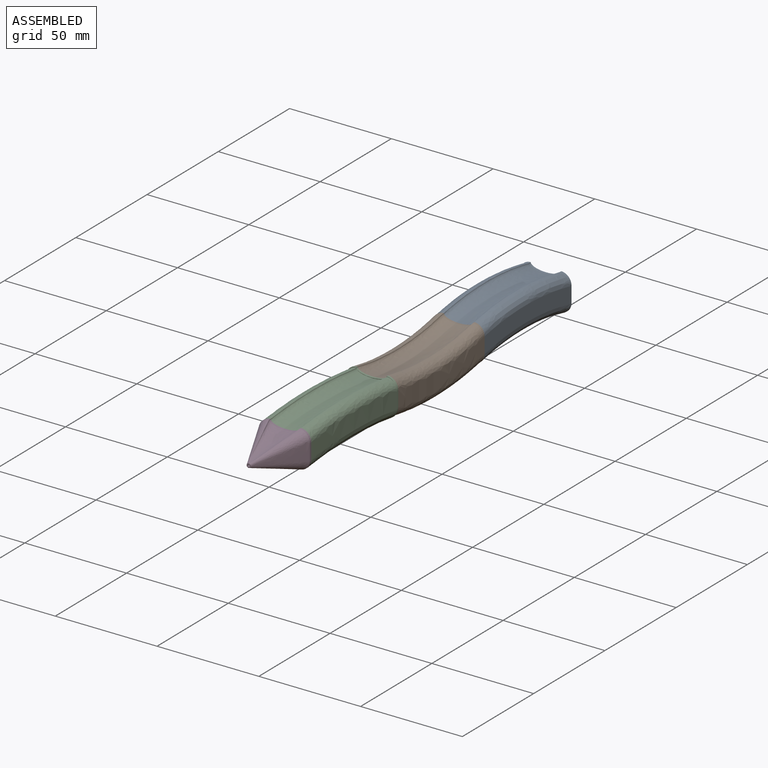
[diagram: assembled view]
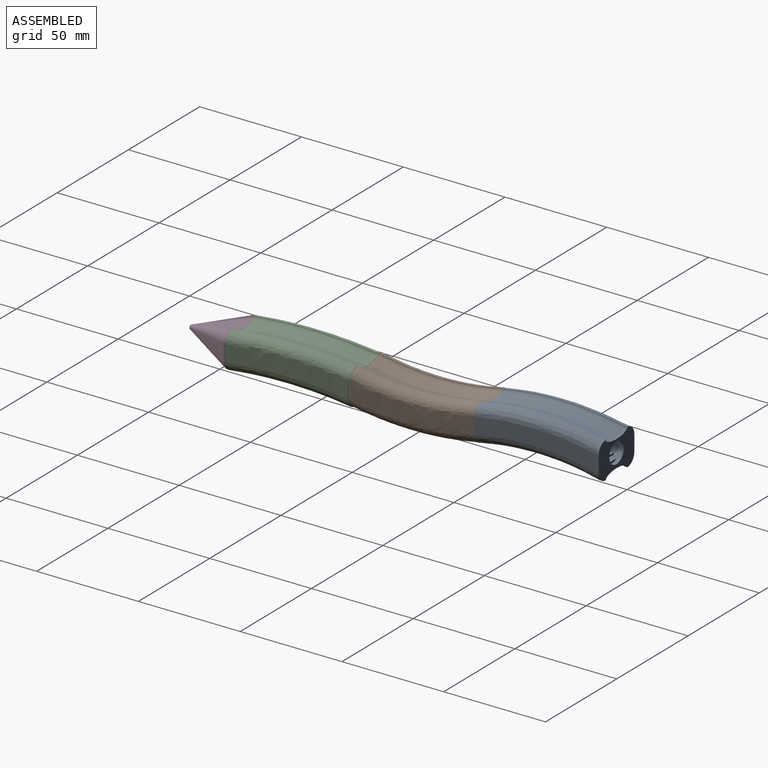
[diagram: assembled view, second angle]
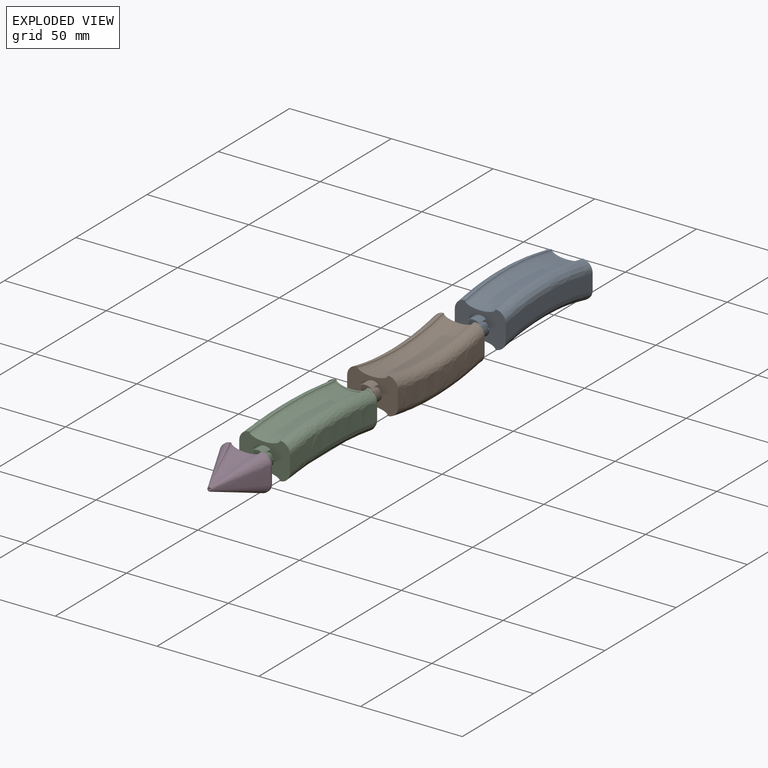
[diagram: exploded view]
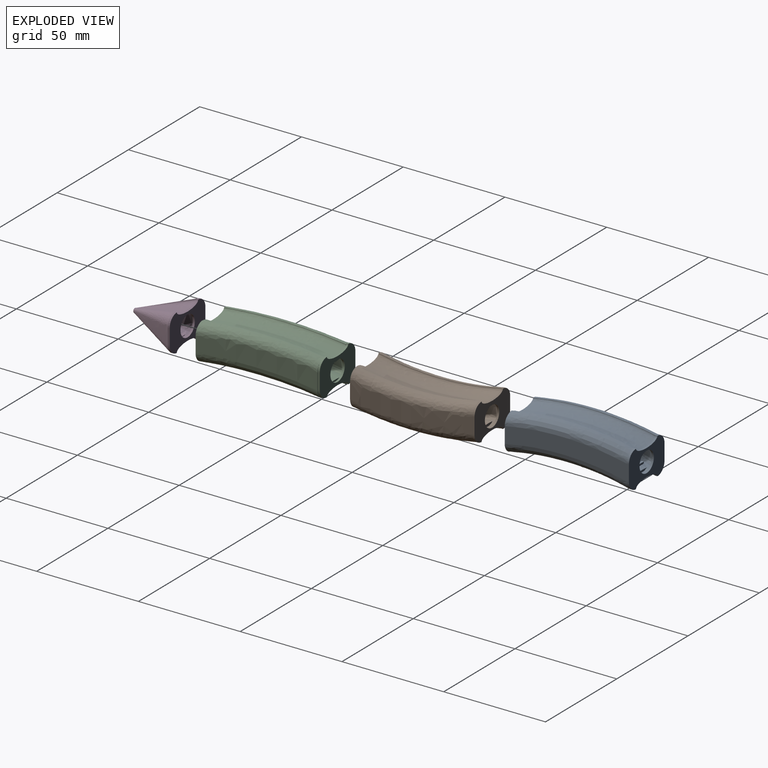
[diagram: exploded view, second angle]
ASSEMBLY  parts=4 mates=3
PART A: 48 faces, bbox 30x71x26.5 mm
  f0: cylinder r=5.05mm len=10.1mm, axis (0,1,0), area 43.5mm2, adj f1,f8,f12,f13,f14,f15,f37,f44
  f1: plane 12.64x7.82mm, normal (0,-1,0), area 57.9mm2, adj f0,f5,f6,f7,f8,f12
  f2: plane 7.03x5.88mm, normal (0,1,0), area 33.9mm2, adj f3,f12
  f3: cylinder r=3.5mm len=7mm, axis (0,-1,0), area 87.3mm2, adj f2,f4,f12
  f4: plane 20.69x12.95mm, normal (0,1,0), area 148.5mm2, adj f3,f5,f6,f7,f8,f9,f10,f11
  f5: offset ~65.59x22.14mm, area 153.6mm2, adj f1,f4,f6,f12
  f6: plane 57.77x11.63mm, normal (-1,0,0), area 449.3mm2, adj f1,f4,f5,f7
  f7: offset ~65.59x22.03mm, area 153.1mm2, adj f1,f4,f6,f8
  f8: offset ~65.83x20.01mm, area 1040.1mm2, adj f0,f1,f4,f7,f9,f13,f14
  f9: offset ~65.77x22.07mm, area 153.1mm2, adj f4,f8,f10,f13
  f10: plane 57.77x11.63mm, normal (1,0,0), area 449.3mm2, adj f4,f9,f11,f13
  f11: offset ~65.26x22.06mm, area 153.6mm2, adj f4,f10,f12,f13
  f12: offset ~65x20.01mm, area 1023.8mm2, adj f0,f1,f2,f3,f4,f5,f11,f13
  f13: plane 12.66x7.85mm, normal (0,-1,0), area 58mm2, adj f0,f8,f9,f10,f11,f12
  f14: plane 6.24x1.3mm, normal (0,1,0), area 5.3mm2, adj f0,f8
  f15: plane 5.68x1.07mm, normal (0,1,0), area 3.9mm2, adj f0,f12
  f16: plane 25.01x17.94mm, normal (0,-1,0), area 297.2mm2, adj f17,f18,f19,f20,f21,f22,f23,f24
  f17: bspline ~60x15.01mm, area 1006.6mm2, adj f16,f18,f24,f34
  f18: bspline ~60x17.14mm, area 469.5mm2, adj f16,f17,f19,f35
  f19: plane 60.21x11.63mm, normal (-1,0,0), area 469.2mm2, adj f16,f18,f20,f36
  f20: bspline ~60x11.08mm, area 469.1mm2, adj f16,f19,f21,f29
  f21: bspline ~60.83x15.01mm, area 1005.4mm2, adj f16,f20,f22,f30
  f22: bspline ~60.59x17.16mm, area 469.1mm2, adj f16,f21,f23,f31
  f23: plane 60.21x11.63mm, normal (1,0,0), area 469.2mm2, adj f16,f22,f24,f32
  f24: bspline ~60.59x17.27mm, area 469.5mm2, adj f16,f17,f23,f33
  f25: cylinder r=4.75mm len=9.5mm, axis (0,1,0), area 139.2mm2, adj f16,f26,f38,f39,f40,f41,f42
  f26: plane 9.5x9.5mm, normal (0,-1,0), area 64.3mm2, adj f25,f27,f38,f39,f43
  f27: cylinder r=1mm len=10mm, axis (0,-1,0), area 61.3mm2, adj f26,f28,f40,f41,f42,f43
  f28: plane 2x2mm, normal (0,-1,0), area 3.1mm2, adj f27
  f29: extruded ~5x5mm, area 7.9mm2, adj f20,f30,f36,f37
  f30: extruded ~15x2.5mm, area 16.7mm2, adj f21,f29,f31,f37
  f31: extruded ~5x5mm, area 7.9mm2, adj f22,f30,f32,f37
  f32: plane 7.94x1mm, normal (1,0,0), area 7.9mm2, adj f23,f31,f33,f37
  f33: extruded ~5x5mm, area 7.9mm2, adj f24,f32,f34,f37
  f34: extruded ~15x2.5mm, area 16.7mm2, adj f17,f33,f35,f37
  f35: extruded ~5x5mm, area 7.9mm2, adj f18,f34,f36,f37
  f36: plane 7.94x1mm, normal (-1,0,0), area 7.9mm2, adj f19,f29,f35,f37
  f37: plane 25x17.94mm, normal (0,1,0), area 290.6mm2, adj f0,f29,f30,f31,f32,f33,f34,f35
  f38: plane 3.98x3.84mm, normal (0,0,1), area 15.3mm2, adj f25,f26,f40,f43
  f39: plane 4.98x2.85mm, normal (0,0,-1), area 14.2mm2, adj f25,f26,f42,f43
  f40: plane 4.75x2.8mm, normal (0,1,0), area 11.7mm2, adj f25,f27,f38,f41,f43
  f41: plane 3.75x1mm, normal (0,0,1), area 3.8mm2, adj f25,f27,f40,f42
  f42: plane 4.75x3.8mm, normal (0,-1,0), area 15.1mm2, adj f25,f27,f39,f41,f43
  f43: plane 4.98x2.8mm, normal (1,0,0), area 6.8mm2, adj f26,f27,f38,f39,f40,f42
  f44: plane 3x0.9mm, normal (0,-1,0), area 2.7mm2, adj f0,f45,f46,f47
  f45: plane 2.92x0.9mm, normal (0,0,1), area 2.6mm2, adj f0,f37,f44,f47
  f46: plane 3x0.9mm, normal (0,0,-1), area 2.7mm2, adj f0,f37,f44,f47
  f47: plane 0.9x0.9mm, normal (-1,0,0), area 0.8mm2, adj f37,f44,f45,f46
PART B: 34 faces, bbox 30.2x71x26.2 mm
  f0: plane 9.5x9.5mm, normal (0,-1,0), area 64.3mm2, adj f18,f28,f31,f32,f33
  f1: plane 14.48x9.54mm, normal (0,-1,0), area 56.4mm2, adj f5,f6,f8,f12
  f2: plane 4.5x4.5mm, normal (0,1,0), area 12.8mm2, adj f3,f28
  f3: cylinder r=2.25mm len=5mm, axis (0,1,0), area 67.2mm2, adj f2,f4,f13,f29,f30,f33
  f4: plane 20.7x12.96mm, normal (0,1,0), area 170.4mm2, adj f3,f5,f6,f7,f8
  f5: offset ~65.75x25.98mm, area 798.7mm2, adj f1,f4,f6,f8
  f6: offset ~65x20.2mm, area 1045.6mm2, adj f1,f4,f5,f7,f9,f10,f12
  f7: offset ~65.74x25.98mm, area 797.7mm2, adj f4,f6,f8,f9
  f8: offset ~65.8x20.2mm, area 1039.7mm2, adj f1,f4,f5,f7,f9,f11,f12
  f9: plane 14.47x9.88mm, normal (0,-1,0), area 59.7mm2, adj f6,f7,f8,f12
  f10: plane 5.51x0.99mm, normal (0,1,0), area 3.6mm2, adj f6,f12
  f11: plane 6.34x1.35mm, normal (0,1,0), area 5.6mm2, adj f8,f12
  f12: cylinder r=5.05mm len=10.1mm, axis (0,1,0), area 44.2mm2, adj f1,f6,f8,f9,f10,f11,f27
  f13: plane 25.01x17.94mm, normal (0,-1,0), area 309.1mm2, adj f3,f14,f15,f16,f17,f18,f30,f32
  f14: bspline ~60x15.2mm, area 1005.1mm2, adj f13,f15,f17,f23
  f15: bspline ~60.74x21.25mm, area 1408.7mm2, adj f13,f14,f16,f24,f25,f26
  f16: bspline ~60x15.2mm, area 1006.1mm2, adj f13,f15,f17,f19
  f17: bspline ~60.75x21.25mm, area 1408.7mm2, adj f13,f14,f16,f20,f21,f22
  f18: cylinder r=4.75mm len=9.5mm, axis (0,1,0), area 139.2mm2, adj f0,f13,f29,f30,f31,f32
  f19: extruded ~15x2.5mm, area 16.7mm2, adj f16,f20,f26,f27
  f20: extruded ~5x5mm, area 7.9mm2, adj f17,f19,f21,f27
  f21: plane 7.94x1mm, normal (1,0,0), area 7.9mm2, adj f17,f20,f22,f27
  f22: extruded ~5x5mm, area 7.9mm2, adj f17,f21,f23,f27
  f23: extruded ~15x2.5mm, area 16.7mm2, adj f14,f22,f24,f27
  f24: extruded ~5x5mm, area 7.9mm2, adj f15,f23,f25,f27
  f25: plane 7.94x1mm, normal (-1,0,0), area 7.9mm2, adj f15,f24,f26,f27
  f26: extruded ~5x5mm, area 7.9mm2, adj f15,f19,f25,f27
  f27: plane 25x17.94mm, normal (0,1,0), area 287.9mm2, adj f12,f19,f20,f21,f22,f23,f24,f25
  f28: cylinder r=1mm len=2.5mm, axis (0,-1,0), area 15.7mm2, adj f0,f2
  f29: plane 4.75x2.8mm, normal (0,1,0), area 8.5mm2, adj f3,f18,f30,f31,f33
  f30: plane 2.5x1mm, normal (0,0,1), area 2.5mm2, adj f3,f13,f18,f29
  f31: plane 4x3.84mm, normal (0,0,1), area 15.4mm2, adj f0,f18,f29,f33
  f32: plane 5x2.85mm, normal (0,0,-1), area 14.3mm2, adj f0,f13,f18,f33
  f33: plane 5x1.55mm, normal (1,0,0), area 5.5mm2, adj f0,f3,f13,f29,f31,f32
PART C: 41 faces, bbox 30.2x71x25 mm
  f0: plane 14.52x9.73mm, normal (0,-1,0), area 60mm2, adj f5,f6,f8,f11
  f1: plane 14.51x9.37mm, normal (0,-1,0), area 56.6mm2, adj f6,f7,f8,f11
  f2: plane 4.5x4.5mm, normal (0,1,0), area 12.8mm2, adj f3,f34
  f3: cylinder r=2.25mm len=5mm, axis (0,1,0), area 67.2mm2, adj f2,f4,f35,f36,f37,f40
  f4: plane 20.67x13.01mm, normal (0,1,0), area 171.7mm2, adj f3,f5,f6,f7,f8
  f5: offset ~65.6x24.78mm, area 804.6mm2, adj f0,f4,f6,f8
  f6: offset ~65x20.21mm, area 1047.3mm2, adj f0,f1,f4,f5,f7,f10
  f7: offset ~65.61x24.78mm, area 803.8mm2, adj f1,f4,f6,f8
  f8: offset ~65.64x20.21mm, area 1044.7mm2, adj f0,f1,f4,f5,f7,f9
  f9: plane 6.39x1.38mm, normal (0,1,0), area 5.7mm2, adj f8,f11
  f10: plane 5.27x0.92mm, normal (0,1,0), area 3.1mm2, adj f6,f11
  f11: cylinder r=5.05mm len=10.1mm, axis (0,1,0), area 31.7mm2, adj f0,f1,f9,f10,f33
  f12: plane 0.61x0.4mm, normal (0,1,0), area 0.1mm2, adj f16,f17,f29
  f13: plane 18.38x2.74mm, normal (0,1,0), area 4.1mm2, adj f17,f18,f25,f26
  f14: plane 16.41x5.04mm, normal (0,1,0), area 4.3mm2, adj f18,f19,f30,f31,f32
  f15: plane 25.01x17.94mm, normal (0,-1,0), area 297.1mm2, adj f16,f17,f18,f19,f20,f37
  f16: bspline ~60.64x15.21mm, area 1003.3mm2, adj f12,f15,f17,f19,f24
  f17: bspline ~60.61x20.05mm, area 1414.4mm2, adj f12,f13,f15,f16,f18,f23,f26
  f18: bspline ~60x15.21mm, area 1003.6mm2, adj f13,f14,f15,f17,f19,f22
  f19: bspline ~60.6x20.05mm, area 1414.4mm2, adj f14,f15,f16,f18,f24
  f20: cylinder r=4.75mm len=9.5mm, axis (0,1,0), area 139.1mm2, adj f15,f21,f35,f36,f38,f39
  f21: plane 9.5x9.5mm, normal (0,-1,0), area 64.4mm2, adj f20,f34,f38,f39,f40
  f22: plane 0.61x0.4mm, normal (0,-1,0), area 0.1mm2, adj f18,f25,f32
  f23: plane 16.41x5.03mm, normal (0,-1,0), area 4.3mm2, adj f17,f26,f27,f28,f29
  f24: plane 18.39x2.75mm, normal (0,-1,0), area 4.1mm2, adj f16,f19,f29,f30
  f25: extruded ~15x2.5mm, area 16.7mm2, adj f13,f22,f26,f32,f33
  f26: cylinder r=5mm len=5mm, axis (0,-1,0), area 7.9mm2, adj f13,f17,f23,f25,f27,f33
  f27: plane 7.94x1mm, normal (-1,0,0), area 7.9mm2, adj f23,f26,f28,f33
  f28: cylinder r=5mm len=5mm, axis (0,-1,0), area 7.9mm2, adj f23,f27,f29,f33
  f29: extruded ~15x2.5mm, area 16.7mm2, adj f12,f23,f24,f28,f30,f33
  f30: cylinder r=5mm len=5mm, axis (0,-1,0), area 7.9mm2, adj f14,f24,f29,f31,f33
  f31: plane 7.94x1mm, normal (1,0,0), area 7.9mm2, adj f14,f30,f32,f33
  f32: cylinder r=5mm len=5mm, axis (0,-1,0), area 7.9mm2, adj f14,f22,f25,f31,f33
  f33: plane 25x17.94mm, normal (0,1,0), area 287.9mm2, adj f11,f25,f26,f27,f28,f29,f30,f31
  f34: cylinder r=1mm len=2.5mm, axis (0,-1,0), area 15.7mm2, adj f2,f21
  f35: plane 4.75x2.8mm, normal (0,1,0), area 8.5mm2, adj f3,f20,f36,f38,f40
  f36: plane 2.5x1mm, normal (0,0,1), area 2.5mm2, adj f3,f20,f35,f37
  f37: plane 4.76x3.87mm, normal (0,-1,0), area 11.9mm2, adj f3,f15,f36,f39,f40
  f38: plane 4x3.83mm, normal (0,0,1), area 15.3mm2, adj f20,f21,f35,f40
  f39: plane 5x2.84mm, normal (0,0,-1), area 14.2mm2, adj f20,f21,f37,f40
  f40: plane 5x1.56mm, normal (1,0,0), area 5.6mm2, adj f3,f21,f35,f37,f38,f39
PART D: 24 faces, bbox 28x29x21.1 mm
  f0: plane 15.37x11.11mm, normal (0,-1,0), area 85.1mm2, adj f2,f3,f5,f6
  f1: plane 15.35x11mm, normal (0,-1,0), area 84.1mm2, adj f3,f4,f5,f6
  f2: offset ~26.38x20.94mm, area 197.3mm2, adj f0,f3,f5,f23
  f3: offset ~26.94x18.14mm, area 221.8mm2, adj f0,f1,f2,f4,f6,f7,f23
  f4: offset ~26.38x20.94mm, area 197.3mm2, adj f1,f3,f5,f23
  f5: offset ~26.94x18.14mm, area 220.1mm2, adj f0,f1,f2,f4,f6,f8,f23
  f6: cylinder r=5.05mm len=10.1mm, axis (0,1,0), area 36.9mm2, adj f0,f1,f3,f5,f7,f8,f22
  f7: plane 2.97x0.28mm, normal (0,1,0), area 0.5mm2, adj f3,f6
  f8: plane 3.61x0.42mm, normal (0,1,0), area 1mm2, adj f5,f6
  f9: plane 2.02x2mm, normal (0,-1,0), area 2.4mm2, adj f10,f11,f12,f13,f23
  f10: bspline ~25x15mm, area 219.8mm2, adj f9,f11,f13,f21
  f11: bspline ~25x17.94mm, area 356.7mm2, adj f9,f10,f12,f18,f19,f20
  f12: bspline ~25x15mm, area 220mm2, adj f9,f11,f13,f17
  f13: bspline ~25x17.94mm, area 357.1mm2, adj f9,f10,f12,f14,f15,f16
  f14: extruded ~5x5mm, area 7.9mm2, adj f13,f15,f21,f22
  f15: plane 7.94x1mm, normal (1,0,0), area 7.9mm2, adj f13,f14,f16,f22
  f16: extruded ~5x5mm, area 7.9mm2, adj f13,f15,f17,f22
  f17: extruded ~15x2.5mm, area 16.7mm2, adj f12,f16,f18,f22
  f18: extruded ~5x5mm, area 7.9mm2, adj f11,f17,f19,f22
  f19: plane 7.94x1mm, normal (-1,0,0), area 7.9mm2, adj f11,f18,f20,f22
  f20: extruded ~5x5mm, area 7.9mm2, adj f11,f19,f21,f22
  f21: extruded ~15x2.5mm, area 16.7mm2, adj f10,f14,f20,f22
  f22: plane 25x17.94mm, normal (0,1,0), area 287.9mm2, adj f6,f14,f15,f16,f17,f18,f19,f20
  f23: cylinder r=0.5mm len=4.8mm, axis (0,-1,0), area 12.2mm2, adj f2,f3,f4,f5,f9
PLACE A t=(-0.23,-226.3,24.47)mm
PLACE B t=(-0.01,-207.3,24.47)mm
PLACE C t=(0.06,-188.3,24.51)mm
PLACE D t=(0,-169.3,24.6)mm
MATE parallel B.f13 <-> C.f11  axis (0,-1,0) through (0.08,-127.3,24.51)mm
MATE parallel A.f16 <-> B.f27  axis (0,-1,0) through (-0.23,-66.3,24.93)mm
MATE parallel C.f34 <-> D.f22  axis (0,-1,0) through (0.06,-188.3,24.51)mm
